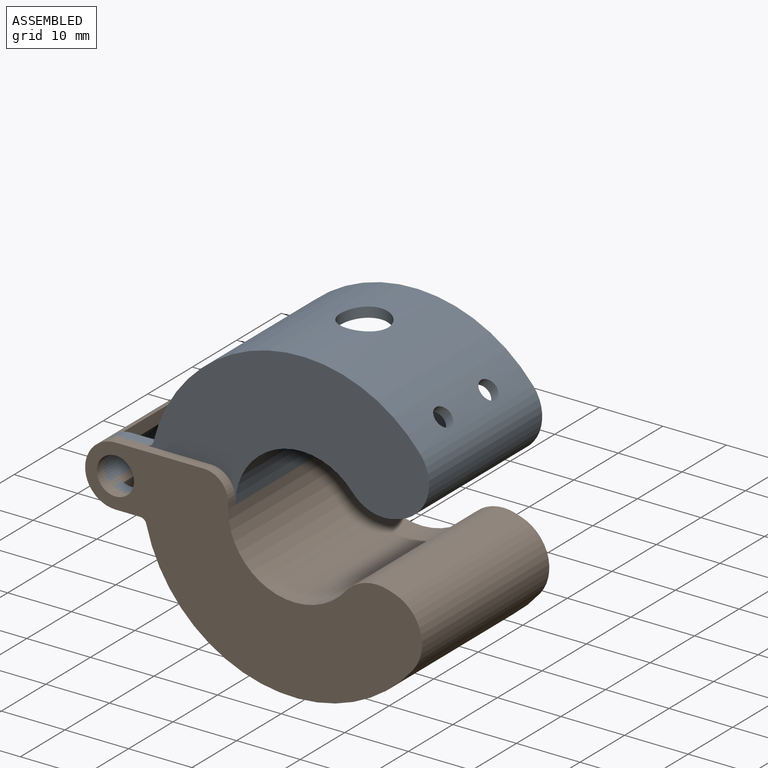
[diagram: assembled view]
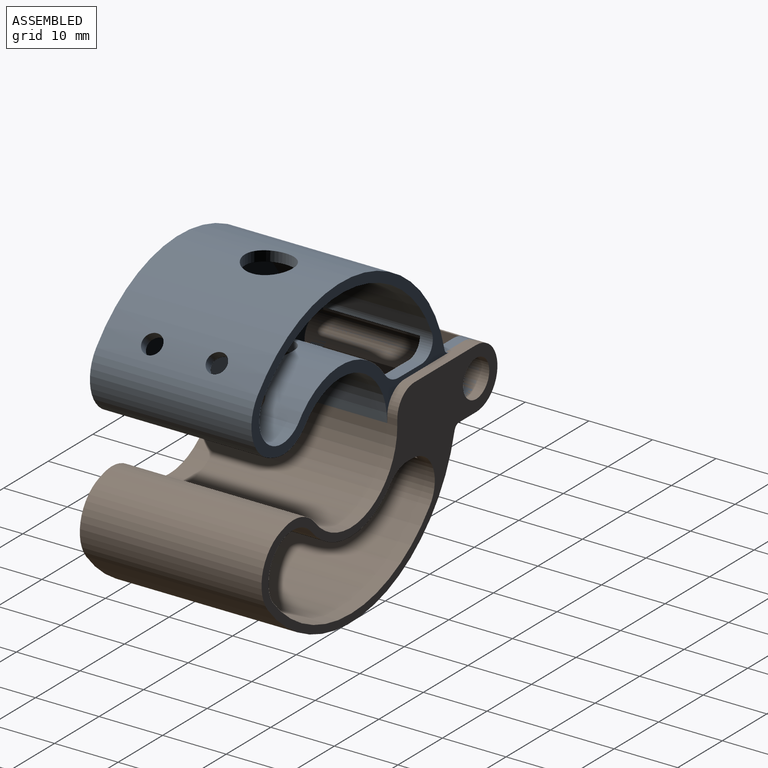
[diagram: assembled view, second angle]
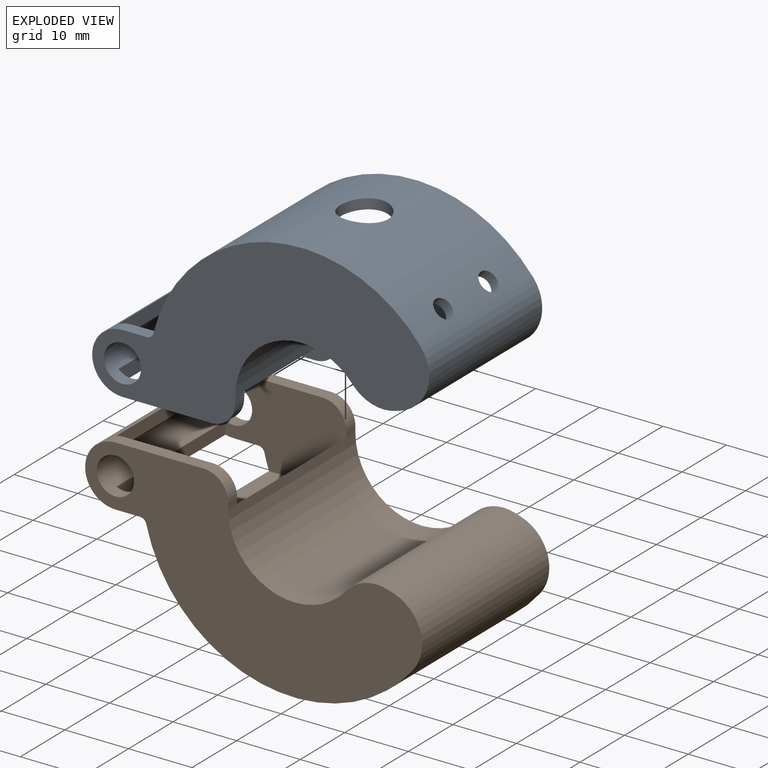
[diagram: exploded view]
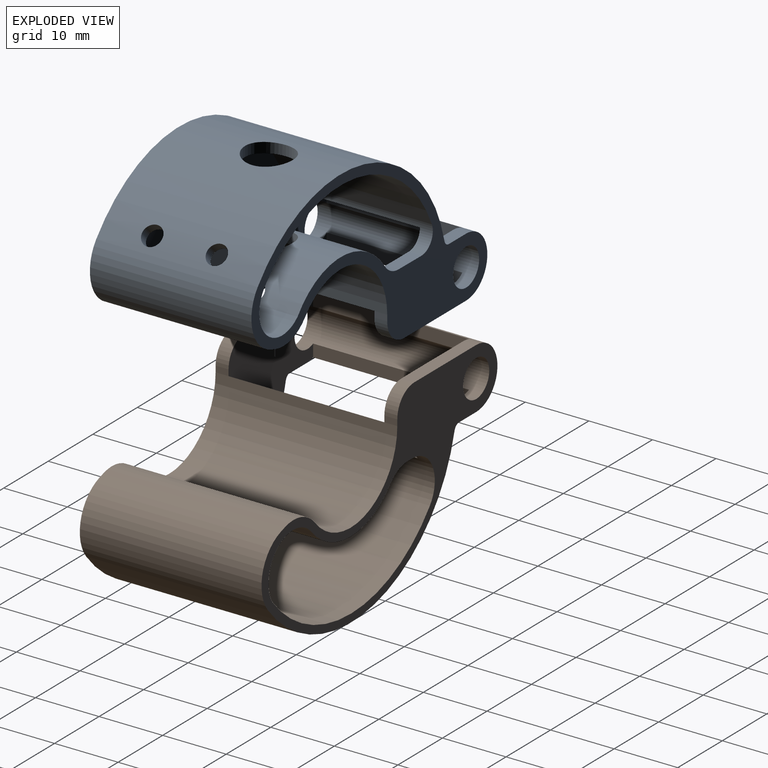
[diagram: exploded view, second angle]
ASSEMBLY  parts=2 mates=2
PART A: 38 faces, bbox 53x25.4x28.7 mm
  f0: plane 2.03x0.95mm, normal (1,0,0), area 1.9mm2, adj f15,f17,f20,f35
  f1: plane 13.92x2.03mm, normal (0,0,1), area 28.3mm2, adj f5,f17,f20,f35
  f2: cylinder r=1.01mm len=2.03mm, axis (0,1,0), area 2.7mm2, adj f3,f7,f21,f34
  f3: cylinder r=23.96mm len=41.96mm, axis (0,1,0), area 1243.3mm2, adj f2,f11,f12,f20,f21,f22,f23,f24
  f4: cylinder r=3.81mm len=3.81mm, axis (0,1,0), area 12.2mm2, adj f16,f18,f21,f34
  f5: cylinder r=4.76mm len=25.4mm, axis (0,1,0), area 290.4mm2, adj f1,f7,f18,f19,f20,f21,f32,f33
  f6: cylinder r=2.92mm len=25.4mm, axis (0,1,0), area 174.4mm2, adj f20,f21,f32,f33,f34,f35
  f7: plane 3.88x2.03mm, normal (0,0,-1), area 7.9mm2, adj f2,f5,f21,f34
  f8: cylinder r=3.75mm len=7.51mm, axis (0,0,1), area 42.4mm2, adj f15,f27
  f9: cylinder r=1.59mm len=3.57mm, axis (-0.71,0,0.71), area 17.4mm2, adj f14,f15,f27
  f10: cylinder r=1.59mm len=3.57mm, axis (-0.71,0,0.71), area 17.4mm2, adj f14,f15,f27
  f11: cylinder r=1.01mm len=2.03mm, axis (0,1,0), area 2.7mm2, adj f3,f19,f20,f35
  f12: cylinder r=6.35mm len=25.4mm, axis (0,1,0), area 312.9mm2, adj f3,f13,f20,f21
  f13: plane 25.4x0.84mm, normal (0.3,0,0.95), area 22.3mm2, adj f12,f14,f20,f21
  f14: cylinder r=6.35mm len=25.4mm, axis (0,1,0), area 188.4mm2, adj f9,f10,f13,f15,f20,f21
  f15: cylinder r=10.44mm len=25.4mm, axis (0,1,0), area 589.8mm2, adj f0,f8,f9,f10,f14,f16,f20,f21
  f16: plane 2.03x0.95mm, normal (1,0,0), area 1.9mm2, adj f4,f15,f21,f34
  f17: cylinder r=3.81mm len=3.81mm, axis (0,1,0), area 12.2mm2, adj f0,f1,f20,f35
  f18: plane 13.92x2.03mm, normal (0,0,1), area 28.3mm2, adj f4,f5,f21,f34
  f19: plane 3.88x2.03mm, normal (0,0,-1), area 7.9mm2, adj f5,f11,f20,f35
  f20: plane 52.99x28.72mm, normal (0,-1,0), area 341mm2, adj f0,f1,f3,f5,f6,f11,f12,f13
  f21: plane 52.99x28.72mm, normal (0,1,0), area 750.5mm2, adj f2,f3,f4,f5,f6,f7,f12,f13
  f22: cylinder r=3.75mm len=7.51mm, axis (0,0,1), area 37.7mm2, adj f3,f25
  f23: cylinder r=1.59mm len=3.41mm, axis (-0.71,0,0.71), area 15.8mm2, adj f3,f25,f26
  f24: cylinder r=1.59mm len=3.41mm, axis (-0.71,0,0.71), area 15.8mm2, adj f3,f25,f26
  f25: cylinder r=22.37mm len=37.15mm, axis (0,-1,0), area 962mm2, adj f20,f22,f23,f24,f26,f30,f31
  f26: cylinder r=5.13mm len=22.86mm, axis (0,-1,0), area 365.1mm2, adj f20,f23,f24,f25,f27,f31
  f27: cylinder r=12.19mm len=22.86mm, axis (0,-1,0), area 460.1mm2, adj f8,f9,f10,f20,f26,f28,f31
  f28: cylinder r=3.81mm len=22.86mm, axis (0,-1,0), area 23.7mm2, adj f20,f27,f29,f31,f35,f36
  f29: plane 5.13x2.03mm, normal (0,0,-1), area 10.4mm2, adj f20,f28,f30,f35
  f30: cylinder r=2.54mm len=22.86mm, axis (0,-1,0), area 33.3mm2, adj f20,f25,f29,f31,f35,f37
  f31: plane 38.96x16.31mm, normal (0,-1,0), area 386.4mm2, adj f25,f26,f27,f28,f30,f36,f37
  f32: plane 21.34x2.21mm, normal (1,0,0), area 47.2mm2, adj f5,f6,f34,f35
  f33: plane 21.34x2.21mm, normal (1,0,0), area 47.2mm2, adj f5,f6,f34,f35
  f34: plane 19.76x12.7mm, normal (0,-1,0), area 200.5mm2, adj f2,f3,f4,f5,f6,f7,f16,f18
  f35: plane 19.76x12.7mm, normal (0,1,0), area 177.4mm2, adj f0,f1,f3,f5,f6,f11,f17,f19
  f36: plane 21.34x7.94mm, normal (-1,0,0), area 139.1mm2, adj f15,f28,f31,f34,f35,f37
  f37: plane 21.34x12.16mm, normal (0,0,1), area 46.1mm2, adj f3,f30,f31,f34,f35,f36
PART B: 32 faces, bbox 53x28.6x28.7 mm
  f0: plane 52.99x28.72mm, normal (0,1,0), area 329.8mm2, adj f5,f6,f7,f8,f9,f10,f12,f13
  f1: plane 24.51x12.16mm, normal (0,0,1), area 124.5mm2, adj f2,f6,f23,f24,f28,f31
  f2: plane 24.51x7.94mm, normal (-1,0,0), area 159mm2, adj f1,f15,f23,f24,f26,f31
  f3: plane 2.03x0.95mm, normal (1,0,0), area 1.9mm2, adj f15,f17,f20,f24
  f4: plane 13.92x2.03mm, normal (0,0,1), area 28.3mm2, adj f8,f17,f20,f24
  f5: cylinder r=1.01mm len=2.03mm, axis (0,1,0), area 2.7mm2, adj f0,f6,f10,f23
  f6: cylinder r=23.96mm len=41.96mm, axis (0,1,0), area 1465.2mm2, adj f0,f1,f5,f11,f12,f20,f23,f24
  f7: cylinder r=3.81mm len=3.81mm, axis (0,1,0), area 12.2mm2, adj f0,f16,f18,f23
  f8: cylinder r=4.76mm len=28.58mm, axis (0,1,0), area 364.5mm2, adj f0,f4,f10,f18,f19,f20,f21,f22
  f9: cylinder r=2.92mm len=28.58mm, axis (0,1,0), area 235mm2, adj f0,f20,f21,f22,f23,f24
  f10: plane 3.88x2.03mm, normal (0,0,-1), area 7.9mm2, adj f0,f5,f8,f23
  f11: cylinder r=1.01mm len=2.03mm, axis (0,1,0), area 2.7mm2, adj f6,f19,f20,f24
  f12: cylinder r=6.35mm len=28.58mm, axis (0,1,0), area 352mm2, adj f0,f6,f13,f20
  f13: plane 28.58x0.84mm, normal (0.3,0,0.95), area 25.1mm2, adj f0,f12,f14,f20
  f14: cylinder r=6.35mm len=28.58mm, axis (0,1,0), area 214.7mm2, adj f0,f13,f15,f20
  f15: cylinder r=10.44mm len=28.58mm, axis (0,1,0), area 729.4mm2, adj f0,f2,f3,f14,f16,f20
  f16: plane 2.03x0.95mm, normal (1,0,0), area 1.9mm2, adj f0,f7,f15,f23
  f17: cylinder r=3.81mm len=3.81mm, axis (0,1,0), area 12.2mm2, adj f3,f4,f20,f24
  f18: plane 13.92x2.03mm, normal (0,0,1), area 28.3mm2, adj f0,f7,f8,f23
  f19: plane 3.88x2.03mm, normal (0,0,-1), area 7.9mm2, adj f8,f11,f20,f24
  f20: plane 52.99x28.72mm, normal (0,-1,0), area 750.5mm2, adj f3,f4,f6,f8,f9,f11,f12,f13
  f21: plane 24.51x1.96mm, normal (1,0,0), area 48.1mm2, adj f8,f9,f23,f24
  f22: plane 24.51x1.96mm, normal (1,0,0), area 48.1mm2, adj f8,f9,f23,f24
  f23: plane 19x12.7mm, normal (0,-1,0), area 185mm2, adj f1,f2,f5,f6,f7,f8,f9,f10
  f24: plane 19x12.7mm, normal (0,1,0), area 197.4mm2, adj f1,f2,f3,f4,f6,f8,f9,f11
  f25: cylinder r=11.71mm len=25.4mm, axis (0,1,0), area 515.8mm2, adj f0,f26,f30,f31
  f26: cylinder r=5.08mm len=25.4mm, axis (0,1,0), area 55.6mm2, adj f0,f2,f23,f25,f27,f31
  f27: plane 2.03x1.06mm, normal (0,0,-1), area 2.2mm2, adj f0,f23,f26,f28
  f28: cylinder r=5.08mm len=25.4mm, axis (0,1,0), area 178.3mm2, adj f0,f1,f23,f27,f29,f31
  f29: cylinder r=22.69mm len=35.43mm, axis (0,1,0), area 1032.5mm2, adj f0,f28,f30,f31
  f30: cylinder r=5.52mm len=25.4mm, axis (0,1,0), area 410.3mm2, adj f0,f25,f29,f31
  f31: plane 37.35x16.86mm, normal (0,1,0), area 408.3mm2, adj f1,f2,f25,f26,f28,f29,f30
PLACE A rot(axis=(1,0,0),180deg) t=(0,-25.4,6.1)mm
PLACE B t=(0,1.59,6.1)mm
MATE cylindrical B.f8 <-> A.f5  axis (0,1,0) through (-28.17,-12.7,6.1)mm
MATE parallel B.f23 <-> A.f20  axis (0,-1,0) through (-10.44,-0.44,6.57)mm
